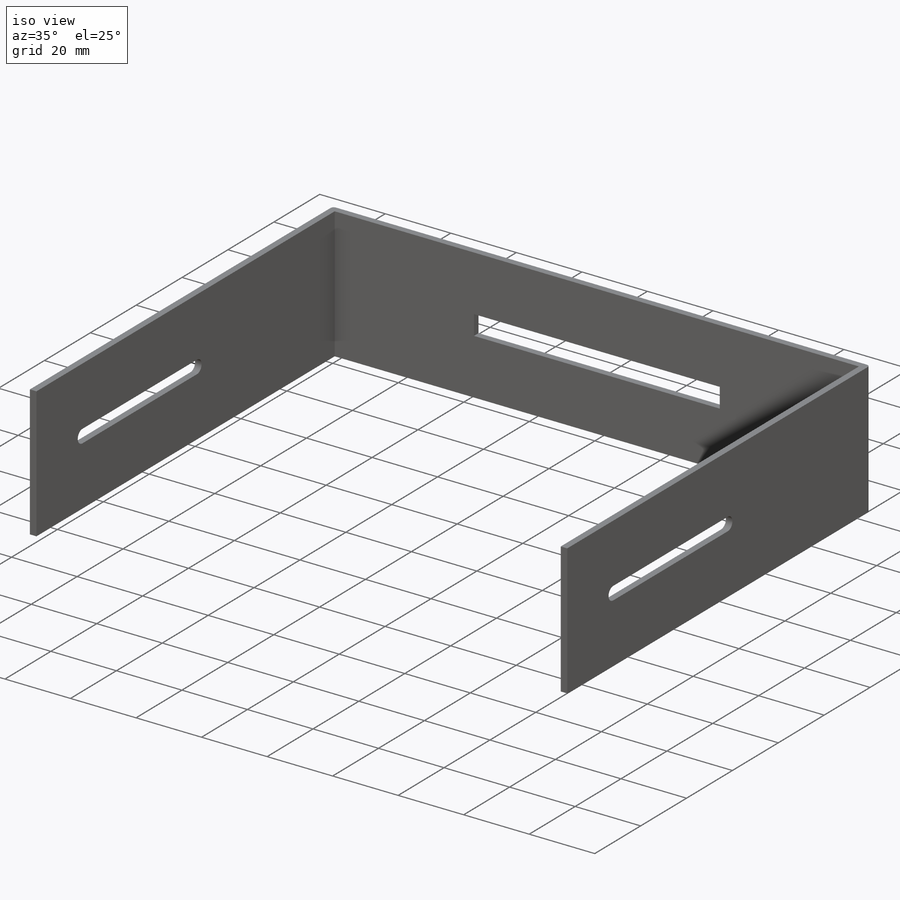
[diagram: iso view]
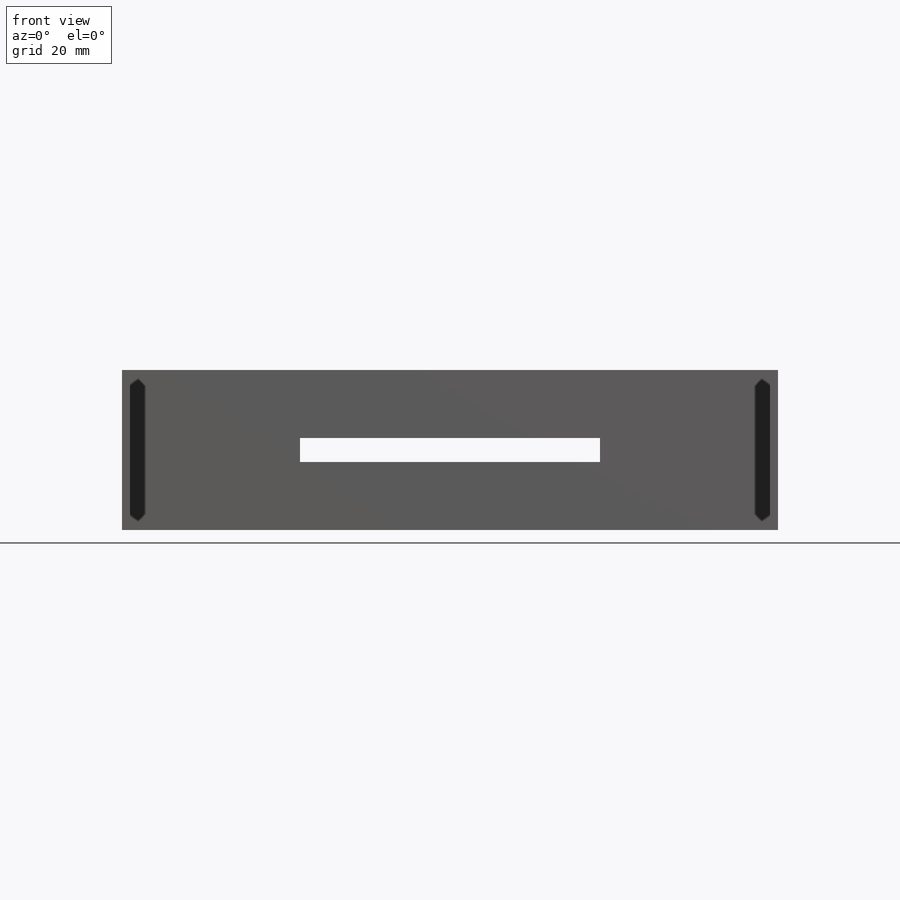
[diagram: front view]
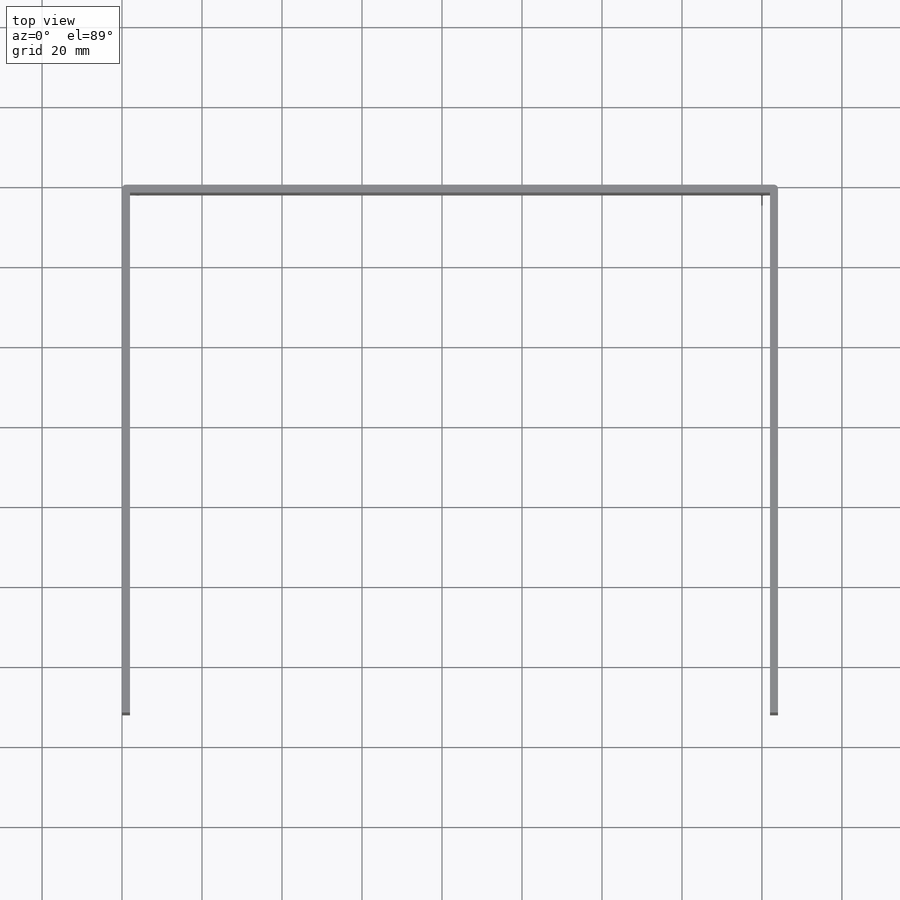
[diagram: top view]
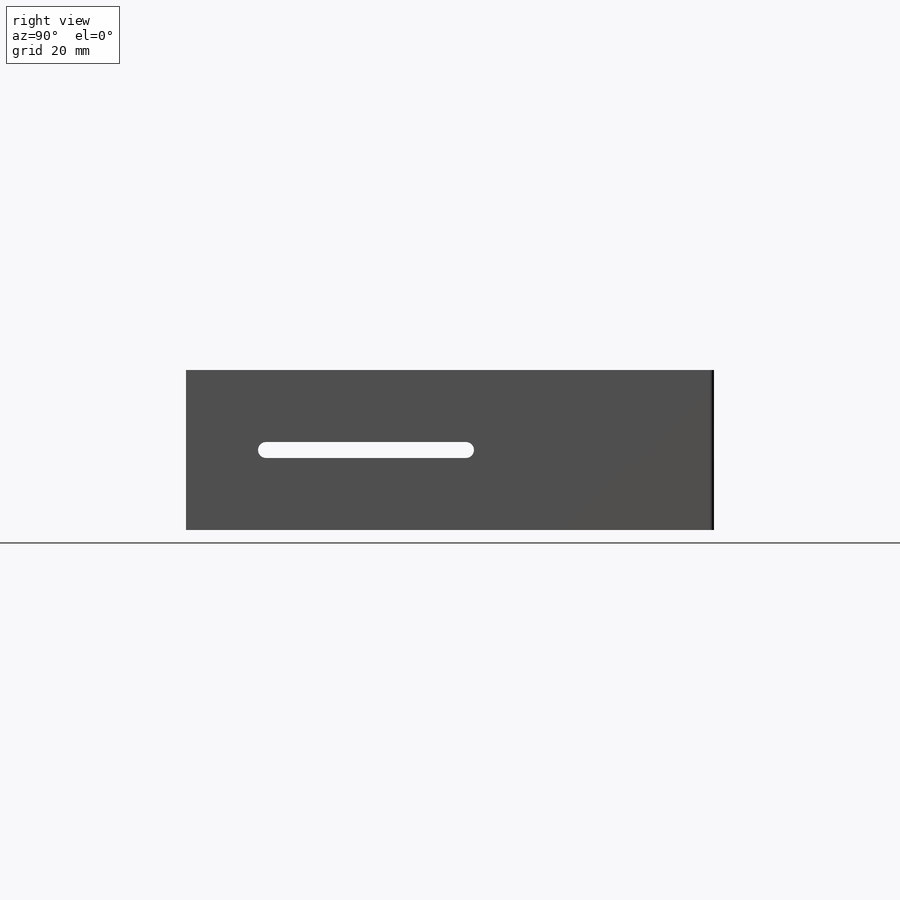
[diagram: right view]
SOLIDWORKS PART (.sldprt)
format: sldprt  version: not decoded by parser v0  size: 220,160 bytes
history: native  units: mm
features: sketch x6, plane x3, extrude x3, cut_extrude x3, fillet x2, material x1 (+9 scaffold rows collapsed)
feature tree (27):
  scaffold x9  (default folders/planes/origin — collapsed)
  material  "Matériau <non spécifié>"
  plane  "Plan de face"
  plane  "Plan de dessus"
  plane  "Plan de droite"
  sketch  "Esquisse1"  dims[D1=164.0mm D2=40.0mm]
  extrude  "Boss.-Extru.1"  Depth=2mm
  sketch  "Esquisse2"  dims[D1=2.0mm]
  extrude  "Boss.-Extru.2"  Depth=130mm
  sketch  "Esquisse3"  dims[D1=2.0mm]
  extrude  "Boss.-Extru.3"  Depth=130mm
  sketch  "Esquisse4"  dims[D3=4.0mm D1=20.0mm D2=20.0mm]
  cut_extrude  "Enlèv. mat.-Extru.1"  [1 undecoded]
  fillet  "Congé1"  Radius=1mm
  fillet  "Congé2"  Radius=1mm
  sketch  "Esquisse5"  dims[c1.D2=4.0mm c1.D4=4.0mm c1.D1=20.0mm c1.D3=45.0mm c1.D5=20.0mm c1.D6=45.0mm c1.D7=80.0mm c1.D8=80.0mm c2.D1=75.0mm c2.D2=6.0mm c2.D3=17.0mm c2.D4=42.5mm]
  cut_extrude  "Enlèv. mat.-Extru.2"  Depth=130mm
  sketch  "Esquisse6"  dims[D1=4.0mm D4=4.0mm D2=20.0mm D3=70.0mm]
  cut_extrude  "Enlèv. mat.-Extru.3"  [1 undecoded]
decode coverage: 12 of 14 modeling features carry decoded parameters
note: 2 parameter values undecoded
note: suppression state not decoded; provenance and decode notes live in map.json
